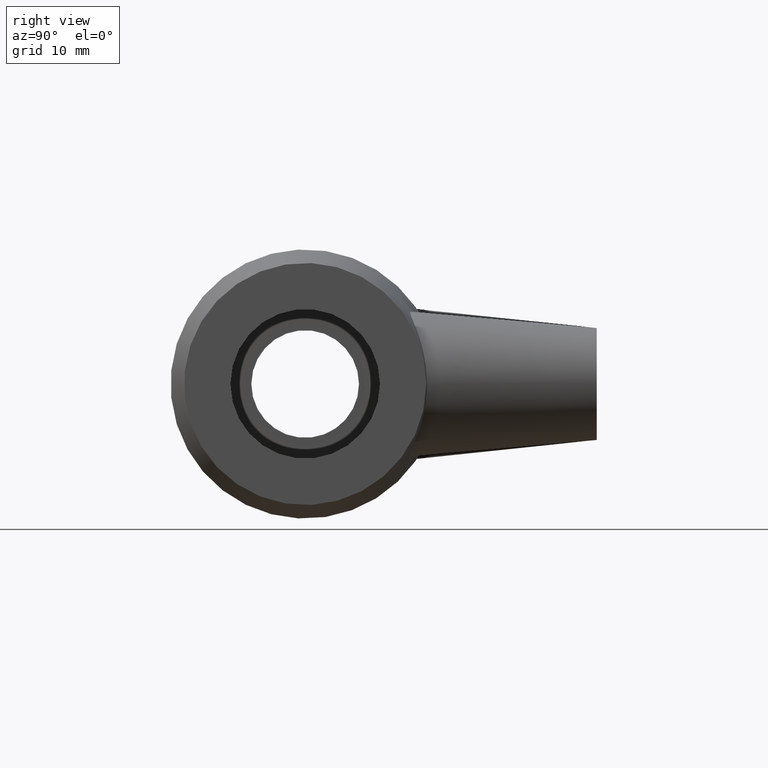
[diagram: clean part render]
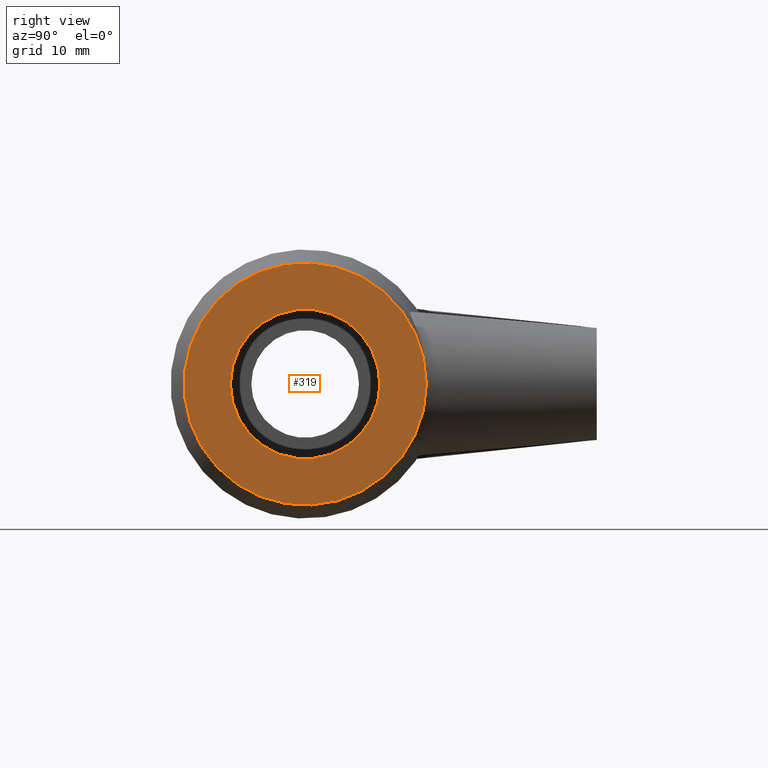
[diagram: same view with one face highlighted and labeled with its STEP entity id]
A machine part, right view. The second image highlights one B-rep face of the part: STEP entity #319.
In plain terms, the highlighted planar face has unit normal (1, 0, 0).
Its self-contained STEP definition (entity closure, byte-faithful):
#37=FACE_BOUND('',#120,.T.);
#77=FACE_OUTER_BOUND('',#119,.T.);
#119=EDGE_LOOP('',(#262));
#120=EDGE_LOOP('',(#263));
#162=CIRCLE('',#362,16.2);
#163=CIRCLE('',#364,9.99999999999999);
#191=VERTEX_POINT('',#623);
#192=VERTEX_POINT('',#626);
#220=EDGE_CURVE('',#191,#191,#162,.T.);
#221=EDGE_CURVE('',#192,#192,#163,.T.);
#262=ORIENTED_EDGE('',*,*,#220,.T.);
#263=ORIENTED_EDGE('',*,*,#221,.F.);
#299=PLANE('',#363);
#319=ADVANCED_FACE('',(#77,#37),#299,.T.);
#362=AXIS2_PLACEMENT_3D('',#624,#446,#447);
#363=AXIS2_PLACEMENT_3D('',#625,#448,#449);
#364=AXIS2_PLACEMENT_3D('',#627,#450,#451);
#446=DIRECTION('center_axis',(1.,1.83697019872103E-16,0.));
#447=DIRECTION('ref_axis',(0.,0.,-1.));
#448=DIRECTION('center_axis',(1.,1.83697019872103E-16,0.));
#449=DIRECTION('ref_axis',(0.,0.,-1.));
#450=DIRECTION('center_axis',(1.,1.83697019872103E-16,0.));
#451=DIRECTION('ref_axis',(0.,0.,-1.));
#623=CARTESIAN_POINT('',(35.5,16.2,0.));
#624=CARTESIAN_POINT('Origin',(35.5,1.30424884109193E-14,0.));
#625=CARTESIAN_POINT('Origin',(35.5,10.,0.));
#626=CARTESIAN_POINT('',(35.5,10.,0.));
#627=CARTESIAN_POINT('Origin',(35.5,1.30424884109193E-14,0.));